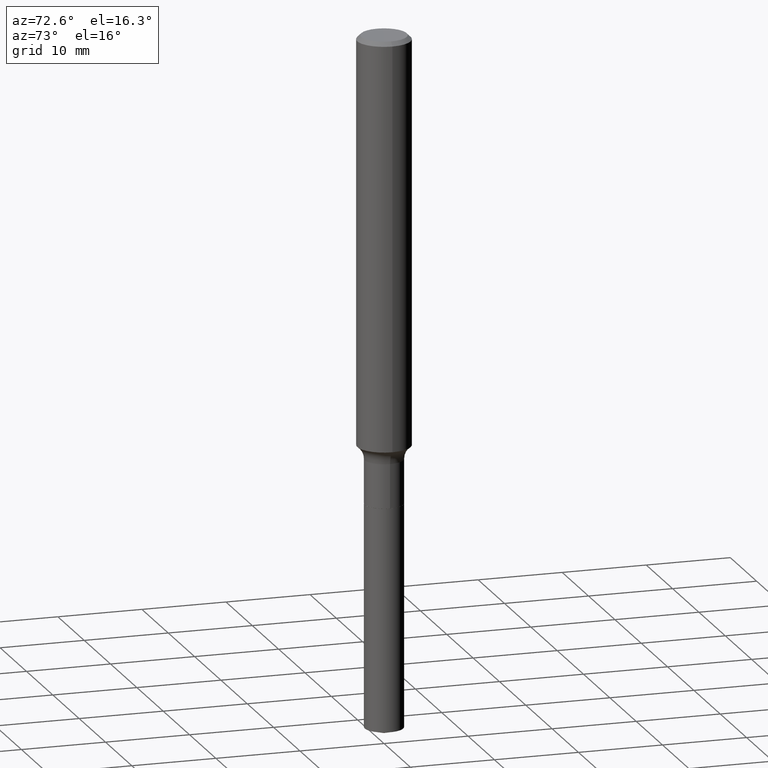
[diagram: clean part render]
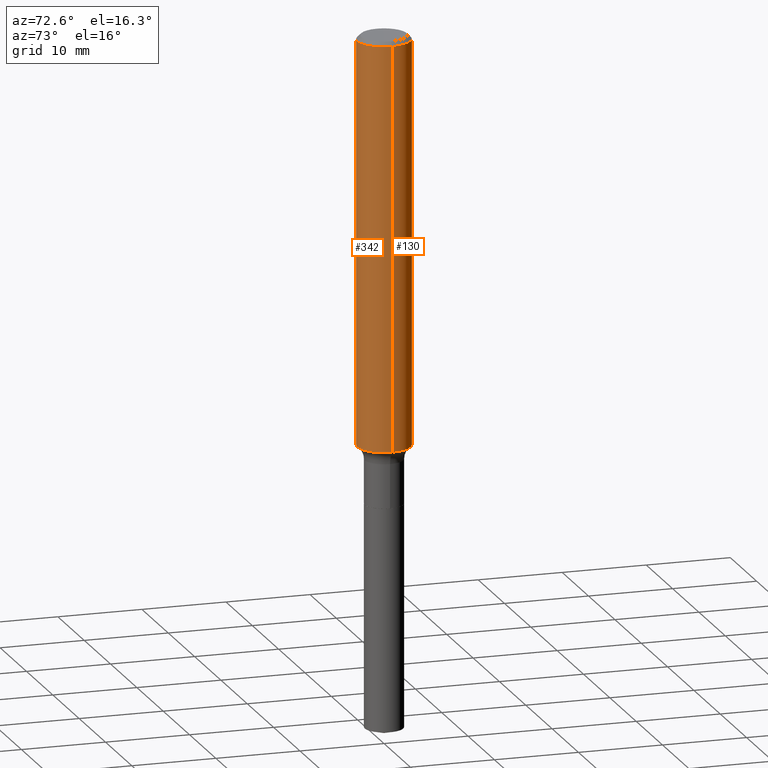
[diagram: same view with one multi-face feature highlighted, each face labeled with its STEP entity id]
A machine part, auxiliary view. The highlighted faces form ONE feature: a constant-radius fillet chain: 2 tangent blend faces with common blend radius 3.175 mm. The faces share edges in the B-rep.
Their STEP definitions:
[1] entity #130 (Cylinder):
#10 = ORIENTED_EDGE ( 'NONE', *, *, #340, .T. ) ;
#17 = LINE ( 'NONE', #54, #179 ) ;
#26 = CYLINDRICAL_SURFACE ( 'NONE', #403, 0.1250000000000001110 ) ;
#32 = VERTEX_POINT ( 'NONE', #470 ) ;
#34 = VERTEX_POINT ( 'NONE', #359 ) ;
#53 = CARTESIAN_POINT ( 'NONE',  ( 4.585254011597165626E-31, -6.546527510330947764E-17, -0.01875000000000014155 ) ) ;
#54 = CARTESIAN_POINT ( 'NONE',  ( -0.1250000000000001110, 8.881784197001260212E-16, -6.148668862818637832E-30 ) ) ;
#82 = EDGE_CURVE ( 'NONE', #451, #366, #17, .T. ) ;
#85 = DIRECTION ( 'NONE',  ( 1.000000000000000000, -6.982962677686264344E-15, 0.000000000000000000 ) ) ;
#92 = DIRECTION ( 'NONE',  ( -2.445468806185136597E-29, 3.491481338843145583E-15, 1.000000000000000000 ) ) ;
#100 = LINE ( 'NONE', #171, #299 ) ;
#105 = DIRECTION ( 'NONE',  ( 1.000000000000000000, -6.982962677686267499E-15, 4.876176775795936353E-29 ) ) ;
#130 = ADVANCED_FACE ( 'NONE', ( #286 ), #26, .T. ) ;
#134 = CARTESIAN_POINT ( 'NONE',  ( -0.1250000000000000000, -2.475293206730392675E-15, -0.01875000000000014155 ) ) ;
#136 = CARTESIAN_POINT ( 'NONE',  ( -0.1250000000000001943, -5.773299558057605382E-15, -1.907923122385904335 ) ) ;
#166 = CIRCLE ( 'NONE', #438, 0.1250000000000000000 ) ;
#171 = CARTESIAN_POINT ( 'NONE',  ( 0.1250000000000001110, -8.728703347107842263E-16, 6.095220969744926047E-30 ) ) ;
#179 = VECTOR ( 'NONE', #482, 39.37007874015748143 ) ;
#208 = CARTESIAN_POINT ( 'NONE',  ( 0.000000000000000000, 0.000000000000000000, 0.000000000000000000 ) ) ;
#227 = CIRCLE ( 'NONE', #270, 0.1250000000000002498 ) ;
#232 = ORIENTED_EDGE ( 'NONE', *, *, #82, .T. ) ;
#270 = AXIS2_PLACEMENT_3D ( 'NONE', #409, #415, #85 ) ;
#280 = ORIENTED_EDGE ( 'NONE', *, *, #368, .F. ) ;
#282 = DIRECTION ( 'NONE',  ( -2.445468806185136877E-29, 3.491481338843145188E-15, 1.000000000000000000 ) ) ;
#286 = FACE_OUTER_BOUND ( 'NONE', #459, .T. ) ;
#289 = DIRECTION ( 'NONE',  ( -2.445468806185136597E-29, 3.491481338843145583E-15, 1.000000000000000000 ) ) ;
#299 = VECTOR ( 'NONE', #282, 39.37007874015748143 ) ;
#340 = EDGE_CURVE ( 'NONE', #34, #451, #227, .T. ) ;
#359 = CARTESIAN_POINT ( 'NONE',  ( 0.1250000000000001943, -7.534348312468516320E-15, -1.907923122385904335 ) ) ;
#366 = VERTEX_POINT ( 'NONE', #134 ) ;
#368 = EDGE_CURVE ( 'NONE', #34, #32, #100, .T. ) ;
#387 = ORIENTED_EDGE ( 'NONE', *, *, #468, .F. ) ;
#403 = AXIS2_PLACEMENT_3D ( 'NONE', #208, #289, #105 ) ;
#409 = CARTESIAN_POINT ( 'NONE',  ( 4.665766480394075880E-29, -6.661477977757731403E-15, -1.907923122385904335 ) ) ;
#415 = DIRECTION ( 'NONE',  ( -2.445468806185136597E-29, 3.491481338843145583E-15, 1.000000000000000000 ) ) ;
#423 = DIRECTION ( 'NONE',  ( 1.000000000000000000, -6.982962677686266711E-15, 0.000000000000000000 ) ) ;
#438 = AXIS2_PLACEMENT_3D ( 'NONE', #53, #92, #423 ) ;
#451 = VERTEX_POINT ( 'NONE', #136 ) ;
#459 = EDGE_LOOP ( 'NONE', ( #10, #232, #387, #280 ) ) ;
#468 = EDGE_CURVE ( 'NONE', #32, #366, #166, .T. ) ;
#470 = CARTESIAN_POINT ( 'NONE',  ( 0.1250000000000000000, -9.383356098140928781E-16, -0.01875000000000014155 ) ) ;
#482 = DIRECTION ( 'NONE',  ( -2.445468806185136877E-29, 3.491481338843145188E-15, 1.000000000000000000 ) ) ;
[2] entity #342 (Cylinder):
#8 = CARTESIAN_POINT ( 'NONE',  ( 0.000000000000000000, 0.000000000000000000, 0.000000000000000000 ) ) ;
#9 = ORIENTED_EDGE ( 'NONE', *, *, #406, .T. ) ;
#17 = LINE ( 'NONE', #54, #179 ) ;
#21 = CIRCLE ( 'NONE', #422, 0.1250000000000000000 ) ;
#32 = VERTEX_POINT ( 'NONE', #470 ) ;
#34 = VERTEX_POINT ( 'NONE', #359 ) ;
#40 = FACE_OUTER_BOUND ( 'NONE', #332, .T. ) ;
#45 = AXIS2_PLACEMENT_3D ( 'NONE', #284, #175, #469 ) ;
#54 = CARTESIAN_POINT ( 'NONE',  ( -0.1250000000000001110, 8.881784197001260212E-16, -6.148668862818637832E-30 ) ) ;
#81 = ORIENTED_EDGE ( 'NONE', *, *, #82, .F. ) ;
#82 = EDGE_CURVE ( 'NONE', #451, #366, #17, .T. ) ;
#96 = DIRECTION ( 'NONE',  ( -2.445468806185136597E-29, 3.491481338843145583E-15, 1.000000000000000000 ) ) ;
#100 = LINE ( 'NONE', #171, #299 ) ;
#109 = CIRCLE ( 'NONE', #45, 0.1250000000000002498 ) ;
#120 = EDGE_CURVE ( 'NONE', #366, #32, #21, .T. ) ;
#134 = CARTESIAN_POINT ( 'NONE',  ( -0.1250000000000000000, -2.475293206730392675E-15, -0.01875000000000014155 ) ) ;
#135 = CARTESIAN_POINT ( 'NONE',  ( 4.585254011597165626E-31, -6.546527510330947764E-17, -0.01875000000000014155 ) ) ;
#136 = CARTESIAN_POINT ( 'NONE',  ( -0.1250000000000001943, -5.773299558057605382E-15, -1.907923122385904335 ) ) ;
#171 = CARTESIAN_POINT ( 'NONE',  ( 0.1250000000000001110, -8.728703347107842263E-16, 6.095220969744926047E-30 ) ) ;
#175 = DIRECTION ( 'NONE',  ( -2.445468806185136597E-29, 3.491481338843145583E-15, 1.000000000000000000 ) ) ;
#179 = VECTOR ( 'NONE', #482, 39.37007874015748143 ) ;
#199 = AXIS2_PLACEMENT_3D ( 'NONE', #8, #265, #373 ) ;
#205 = ORIENTED_EDGE ( 'NONE', *, *, #120, .F. ) ;
#265 = DIRECTION ( 'NONE',  ( -2.445468806185136597E-29, 3.491481338843145583E-15, 1.000000000000000000 ) ) ;
#282 = DIRECTION ( 'NONE',  ( -2.445468806185136877E-29, 3.491481338843145188E-15, 1.000000000000000000 ) ) ;
#284 = CARTESIAN_POINT ( 'NONE',  ( 4.665766480394075880E-29, -6.661477977757731403E-15, -1.907923122385904335 ) ) ;
#299 = VECTOR ( 'NONE', #282, 39.37007874015748143 ) ;
#319 = DIRECTION ( 'NONE',  ( 1.000000000000000000, -6.982962677686266711E-15, 0.000000000000000000 ) ) ;
#332 = EDGE_LOOP ( 'NONE', ( #81, #9, #461, #205 ) ) ;
#342 = ADVANCED_FACE ( 'NONE', ( #40 ), #489, .T. ) ;
#359 = CARTESIAN_POINT ( 'NONE',  ( 0.1250000000000001943, -7.534348312468516320E-15, -1.907923122385904335 ) ) ;
#366 = VERTEX_POINT ( 'NONE', #134 ) ;
#368 = EDGE_CURVE ( 'NONE', #34, #32, #100, .T. ) ;
#373 = DIRECTION ( 'NONE',  ( 1.000000000000000000, -6.982962677686267499E-15, 4.876176775795936353E-29 ) ) ;
#406 = EDGE_CURVE ( 'NONE', #451, #34, #109, .T. ) ;
#422 = AXIS2_PLACEMENT_3D ( 'NONE', #135, #96, #319 ) ;
#451 = VERTEX_POINT ( 'NONE', #136 ) ;
#461 = ORIENTED_EDGE ( 'NONE', *, *, #368, .T. ) ;
#469 = DIRECTION ( 'NONE',  ( 1.000000000000000000, -6.982962677686264344E-15, 0.000000000000000000 ) ) ;
#470 = CARTESIAN_POINT ( 'NONE',  ( 0.1250000000000000000, -9.383356098140928781E-16, -0.01875000000000014155 ) ) ;
#482 = DIRECTION ( 'NONE',  ( -2.445468806185136877E-29, 3.491481338843145188E-15, 1.000000000000000000 ) ) ;
#489 = CYLINDRICAL_SURFACE ( 'NONE', #199, 0.1250000000000001110 ) ;